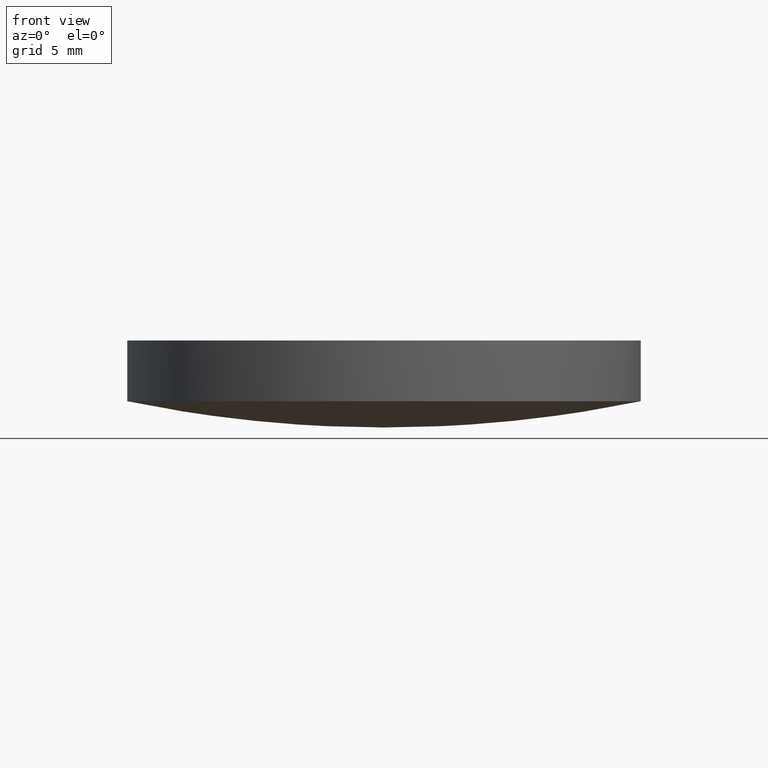
[diagram: clean part render]
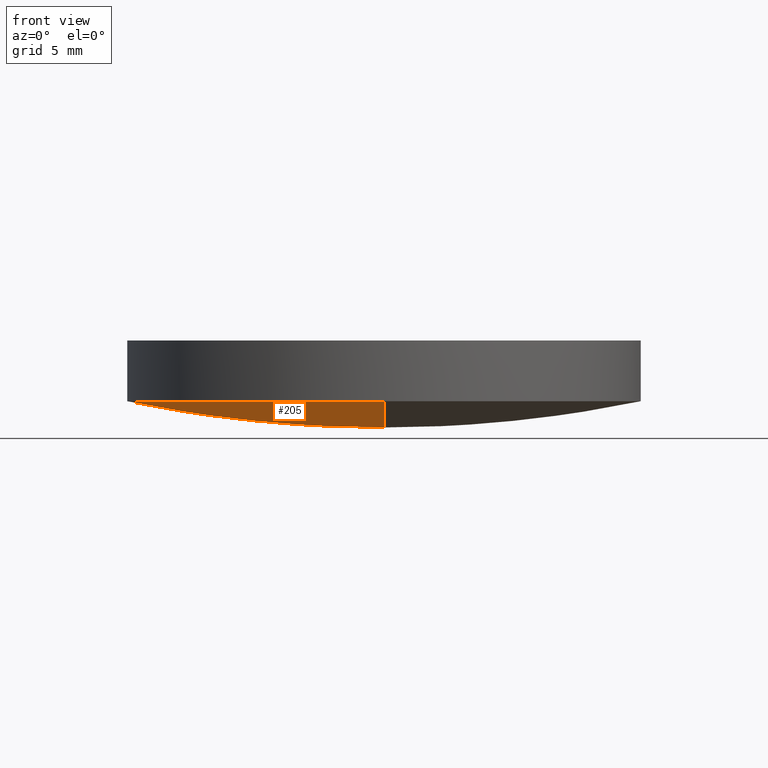
[diagram: same view with one face highlighted and labeled with its STEP entity id]
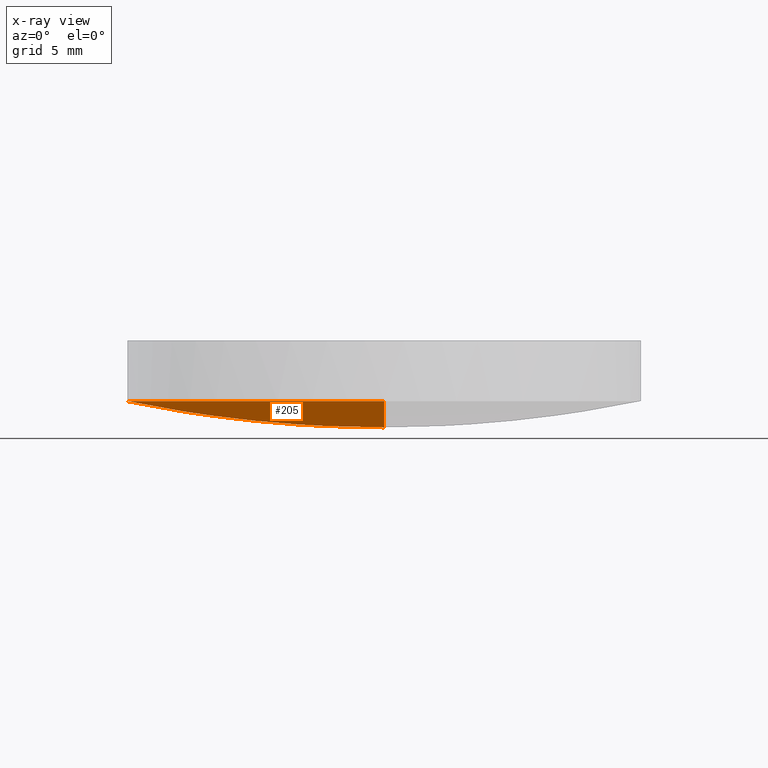
[diagram: x-ray of the same camera — body ghosted, the highlighted face saturated]
A machine part, front view. The second image highlights one B-rep face of the part: STEP entity #205.
The next image is the same camera in x-ray: the body ghosted, the highlighted face saturated — about 0% of this face is hidden behind the body in this view.
In plain terms, the highlighted face is a freeform B-spline surface patch.
Its self-contained STEP definition (entity closure, byte-faithful):
#11 = DIRECTION ( 'NONE',  ( 1.000000000000000000, 0.0000000000000000000, 0.0000000000000000000 ) ) ;
#17 = CARTESIAN_POINT ( 'NONE',  ( -8.673617379884035500E-015, 4.344821375919631900, -0.4497144982151724000 ) ) ;
#23 = AXIS2_PLACEMENT_3D ( 'NONE', #85, #227, #211 ) ;
#36 = CARTESIAN_POINT ( 'NONE',  ( -12.50430193665807500, 12.85024539458807500, 2.616616642309985300 ) ) ;
#37 = CARTESIAN_POINT ( 'NONE',  ( -4.204824670683225700, 12.85024539458807300, 1.330075775174026400 ) ) ;
#40 = ORIENTED_EDGE ( 'NONE', *, *, #182, .T. ) ;
#41 =( BOUNDED_SURFACE ( )  B_SPLINE_SURFACE ( 3, 3, ( 
 ( #136, #118, #177, #70 ),
 ( #195, #219, #181, #91 ),
 ( #183, #90, #162, #17 ),
 ( #36, #124, #37, #78 ) ),
 .UNSPECIFIED., .F., .F., .F. ) 
 B_SPLINE_SURFACE_WITH_KNOTS ( ( 4, 4 ),
 ( 4, 4 ),
 ( 0.0000000000000000000, 1.000000000000000000 ),
 ( 0.0000000000000000000, 1.000000000000000000 ),
 .UNSPECIFIED. ) 
 GEOMETRIC_REPRESENTATION_ITEM ( )  RATIONAL_B_SPLINE_SURFACE ( (
 ( 1.000000000000000000, 0.9964991332635425600, 0.9964991332635425600, 1.000000000000000000),
 ( 0.9858667965659968500, 0.9824154082913211200, 0.9824154082913211200, 0.9858667965659968500),
 ( 0.9858667965659968500, 0.9824154082913211200, 0.9824154082913211200, 0.9858667965659968500),
 ( 1.000000000000000000, 0.9964991332635425600, 0.9964991332635425600, 1.000000000000000000) ) ) 
 REPRESENTATION_ITEM ( '' )  SURFACE ( )  );
#52 = CARTESIAN_POINT ( 'NONE',  ( 7.105427357601000300E-015, 0.0000000000000000000, 62.74000000000000200 ) ) ;
#68 = CARTESIAN_POINT ( 'NONE',  ( 7.105427357600998700E-015, -12.70000000000000300, 1.298828136175658200 ) ) ;
#69 = DIRECTION ( 'NONE',  ( 1.000000000000000000, 0.0000000000000000000, 0.0000000000000000000 ) ) ;
#70 = CARTESIAN_POINT ( 'NONE',  ( -8.673617379884035500E-015, -12.85024539458808200, 1.330075775174025500 ) ) ;
#76 = VERTEX_POINT ( 'NONE', #197 ) ;
#78 = CARTESIAN_POINT ( 'NONE',  ( -8.673617379884035500E-015, 12.85024539458807500, 1.330075775174025500 ) ) ;
#85 = CARTESIAN_POINT ( 'NONE',  ( 4.996003610813200500E-016, 2.442490654175340100E-015, 1.298828136175660200 ) ) ;
#90 = CARTESIAN_POINT ( 'NONE',  ( -8.630658128819279200, 4.344821375919631900, -0.006888369954437667900 ) ) ;
#91 = CARTESIAN_POINT ( 'NONE',  ( -8.673617379884035500E-015, -4.344821375919638100, -0.4497144982151732300 ) ) ;
#95 = ORIENTED_EDGE ( 'NONE', *, *, #159, .F. ) ;
#102 = DIRECTION ( 'NONE',  ( -0.0000000000000000000, -0.0000000000000000000, -1.000000000000000000 ) ) ;
#110 = EDGE_LOOP ( 'NONE', ( #95, #40, #220 ) ) ;
#117 = CARTESIAN_POINT ( 'NONE',  ( 4.996003610813200500E-016, 2.442490654175340100E-015, 1.298828136175660200 ) ) ;
#118 = CARTESIAN_POINT ( 'NONE',  ( -8.387568545133094100, -12.85024539458808100, 1.760429341370829400 ) ) ;
#124 = CARTESIAN_POINT ( 'NONE',  ( -8.387568545133094100, 12.85024539458807300, 1.760429341370829400 ) ) ;
#127 = AXIS2_PLACEMENT_3D ( 'NONE', #117, #102, #69 ) ;
#134 = CARTESIAN_POINT ( 'NONE',  ( -12.69999999999999900, 3.997792089092478900E-015, 1.298828136175660200 ) ) ;
#135 = EDGE_CURVE ( 'NONE', #214, #76, #234, .T. ) ;
#136 = CARTESIAN_POINT ( 'NONE',  ( -12.50430193665807500, -12.85024539458808200, 2.616616642309985300 ) ) ;
#137 = VERTEX_POINT ( 'NONE', #68 ) ;
#159 = EDGE_CURVE ( 'NONE', #137, #76, #192, .T. ) ;
#160 = CIRCLE ( 'NONE', #127, 12.69999999999999900 ) ;
#162 = CARTESIAN_POINT ( 'NONE',  ( -4.326689436755732900, 4.344821375919631900, -0.4497144982151712300 ) ) ;
#177 = CARTESIAN_POINT ( 'NONE',  ( -4.204824670683225700, -12.85024539458808100, 1.330075775174026400 ) ) ;
#178 = DIRECTION ( 'NONE',  ( 0.0000000000000000000, -1.000000000000000000, 0.0000000000000000000 ) ) ;
#181 = CARTESIAN_POINT ( 'NONE',  ( -4.326689436755732900, -4.344821375919638100, -0.4497144982151722300 ) ) ;
#182 = EDGE_CURVE ( 'NONE', #137, #214, #160, .T. ) ;
#183 = CARTESIAN_POINT ( 'NONE',  ( -12.86670321370425000, 4.344821375919631900, 0.8741130607796351300 ) ) ;
#192 = CIRCLE ( 'NONE', #217, 62.74000000000000200 ) ;
#195 = CARTESIAN_POINT ( 'NONE',  ( -12.86670321370425000, -4.344821375919638100, 0.8741130607796339100 ) ) ;
#197 = CARTESIAN_POINT ( 'NONE',  ( 7.105427357600998700E-015, 12.70000000000000300, 1.298828136175658200 ) ) ;
#205 = ADVANCED_FACE ( 'NONE', ( #206 ), #41, .T. ) ;
#206 = FACE_OUTER_BOUND ( 'NONE', #110, .T. ) ;
#211 = DIRECTION ( 'NONE',  ( 1.000000000000000000, 8.881784197001252300E-016, 0.0000000000000000000 ) ) ;
#214 = VERTEX_POINT ( 'NONE', #134 ) ;
#217 = AXIS2_PLACEMENT_3D ( 'NONE', #52, #11, #178 ) ;
#219 = CARTESIAN_POINT ( 'NONE',  ( -8.630658128819279200, -4.344821375919638100, -0.006888369954438752900 ) ) ;
#220 = ORIENTED_EDGE ( 'NONE', *, *, #135, .T. ) ;
#227 = DIRECTION ( 'NONE',  ( -0.0000000000000000000, -0.0000000000000000000, -1.000000000000000000 ) ) ;
#234 = CIRCLE ( 'NONE', #23, 12.69999999999999900 ) ;